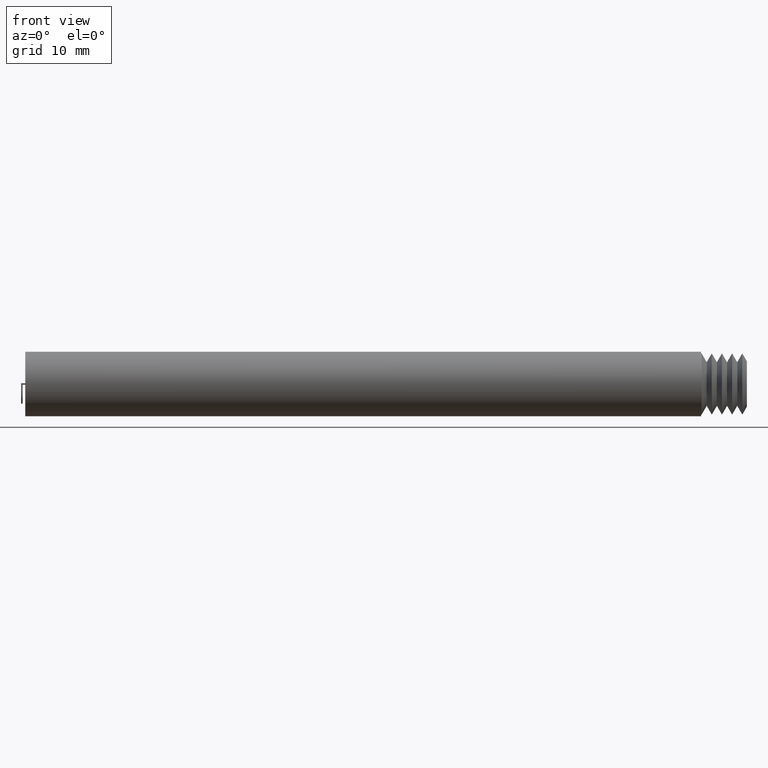
[diagram: clean part render]
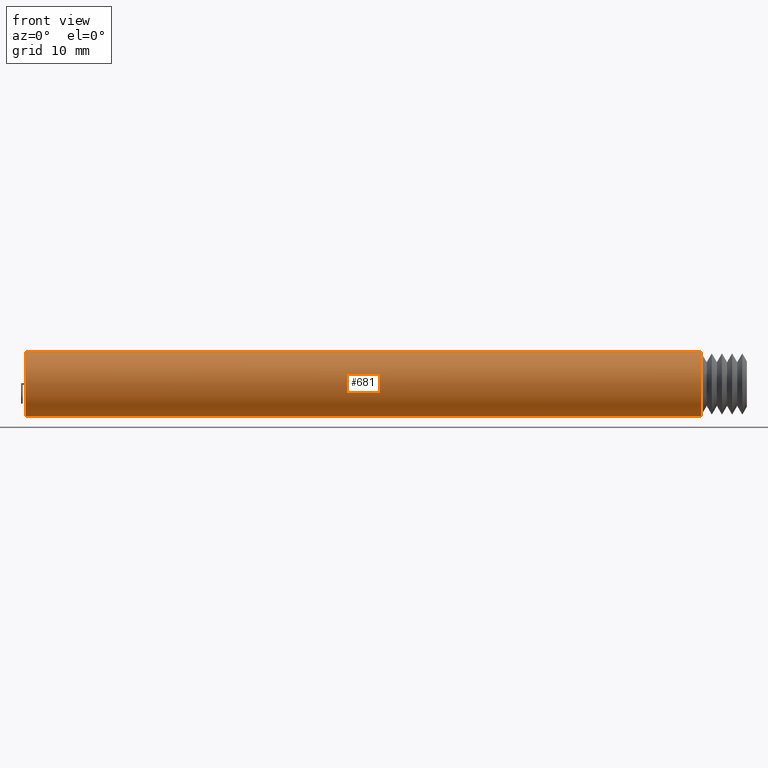
[diagram: same view with one face highlighted and labeled with its STEP entity id]
A machine part, front view. The second image highlights one B-rep face of the part: STEP entity #681.
In plain terms, the highlighted cylindrical surface (edge-blend (fillet) strip) has radius 3.175 mm, axis along (-1, -0, -0).
Its self-contained STEP definition (entity closure, byte-faithful):
#4 = LINE ( 'NONE', #2015, #760 ) ;
#9 = VECTOR ( 'NONE', #1594, 1000.000000000000000 ) ;
#14 = CARTESIAN_POINT ( 'NONE',  ( 28.74142240399909200, -5.442998548328843000, -3.174999999999999800 ) ) ;
#20 = DIRECTION ( 'NONE',  ( -1.000000000000000000, -0.0000000000000000000, -0.0000000000000000000 ) ) ;
#66 = ORIENTED_EDGE ( 'NONE', *, *, #1182, .F. ) ;
#143 = DIRECTION ( 'NONE',  ( 0.0000000000000000000, 0.0000000000000000000, 1.000000000000000000 ) ) ;
#265 = AXIS2_PLACEMENT_3D ( 'NONE', #2176, #20, #1296 ) ;
#275 = DIRECTION ( 'NONE',  ( -1.000000000000000000, -0.0000000000000000000, -0.0000000000000000000 ) ) ;
#333 = ORIENTED_EDGE ( 'NONE', *, *, #1094, .T. ) ;
#344 = CIRCLE ( 'NONE', #265, 3.174999999999999800 ) ;
#491 = AXIS2_PLACEMENT_3D ( 'NONE', #1270, #2329, #143 ) ;
#625 = VERTEX_POINT ( 'NONE', #1949 ) ;
#666 = FACE_OUTER_BOUND ( 'NONE', #2027, .T. ) ;
#681 = ADVANCED_FACE ( 'NONE', ( #666 ), #1810, .T. ) ;
#683 = CARTESIAN_POINT ( 'NONE',  ( -37.75857759600091200, -5.442998548328843000, 3.174999999999999800 ) ) ;
#760 = VECTOR ( 'NONE', #275, 1000.000000000000000 ) ;
#868 = CARTESIAN_POINT ( 'NONE',  ( -37.75857759600091200, -5.442998548328843000, -3.174999999999999800 ) ) ;
#928 = CARTESIAN_POINT ( 'NONE',  ( -37.75857759600091200, -5.442998548328843000, 3.174999999999999800 ) ) ;
#1019 = DIRECTION ( 'NONE',  ( 1.000000000000000000, 0.0000000000000000000, 0.0000000000000000000 ) ) ;
#1094 = EDGE_CURVE ( 'NONE', #625, #1650, #1674, .T. ) ;
#1115 = EDGE_CURVE ( 'NONE', #2281, #1650, #344, .T. ) ;
#1182 = EDGE_CURVE ( 'NONE', #625, #1797, #1471, .T. ) ;
#1270 = CARTESIAN_POINT ( 'NONE',  ( -37.75857759600091200, -5.442998548328843000, 0.0000000000000000000 ) ) ;
#1296 = DIRECTION ( 'NONE',  ( 0.0000000000000000000, 0.0000000000000000000, 1.000000000000000000 ) ) ;
#1364 = ORIENTED_EDGE ( 'NONE', *, *, #1115, .F. ) ;
#1471 = CIRCLE ( 'NONE', #2306, 3.174999999999999800 ) ;
#1594 = DIRECTION ( 'NONE',  ( -1.000000000000000000, -0.0000000000000000000, -0.0000000000000000000 ) ) ;
#1632 = ORIENTED_EDGE ( 'NONE', *, *, #1851, .F. ) ;
#1650 = VERTEX_POINT ( 'NONE', #683 ) ;
#1674 = LINE ( 'NONE', #928, #9 ) ;
#1715 = DIRECTION ( 'NONE',  ( 0.0000000000000000000, 0.0000000000000000000, -1.000000000000000000 ) ) ;
#1797 = VERTEX_POINT ( 'NONE', #14 ) ;
#1810 = CYLINDRICAL_SURFACE ( 'NONE', #491, 3.174999999999999800 ) ;
#1851 = EDGE_CURVE ( 'NONE', #1797, #2281, #4, .T. ) ;
#1905 = CARTESIAN_POINT ( 'NONE',  ( 28.74142240399909200, -5.442998548328843000, 0.0000000000000000000 ) ) ;
#1949 = CARTESIAN_POINT ( 'NONE',  ( 28.74142240399909200, -5.442998548328843000, 3.174999999999999800 ) ) ;
#2015 = CARTESIAN_POINT ( 'NONE',  ( -37.75857759600091200, -5.442998548328843000, -3.174999999999999800 ) ) ;
#2027 = EDGE_LOOP ( 'NONE', ( #1632, #66, #333, #1364 ) ) ;
#2176 = CARTESIAN_POINT ( 'NONE',  ( -37.75857759600091200, -5.442998548328843000, 0.0000000000000000000 ) ) ;
#2281 = VERTEX_POINT ( 'NONE', #868 ) ;
#2306 = AXIS2_PLACEMENT_3D ( 'NONE', #1905, #1019, #1715 ) ;
#2329 = DIRECTION ( 'NONE',  ( -1.000000000000000000, -0.0000000000000000000, -0.0000000000000000000 ) ) ;